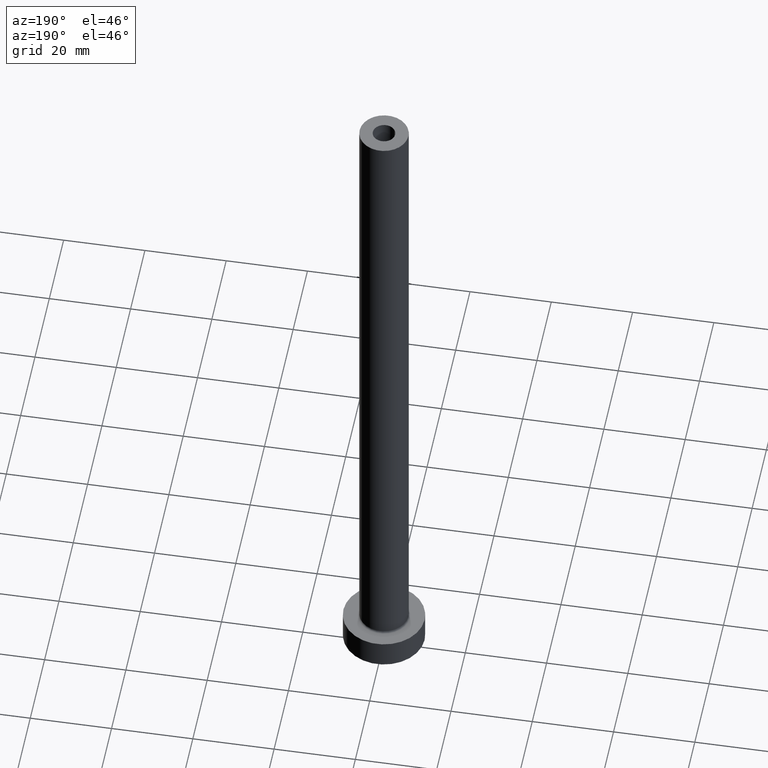
[diagram: clean part render]
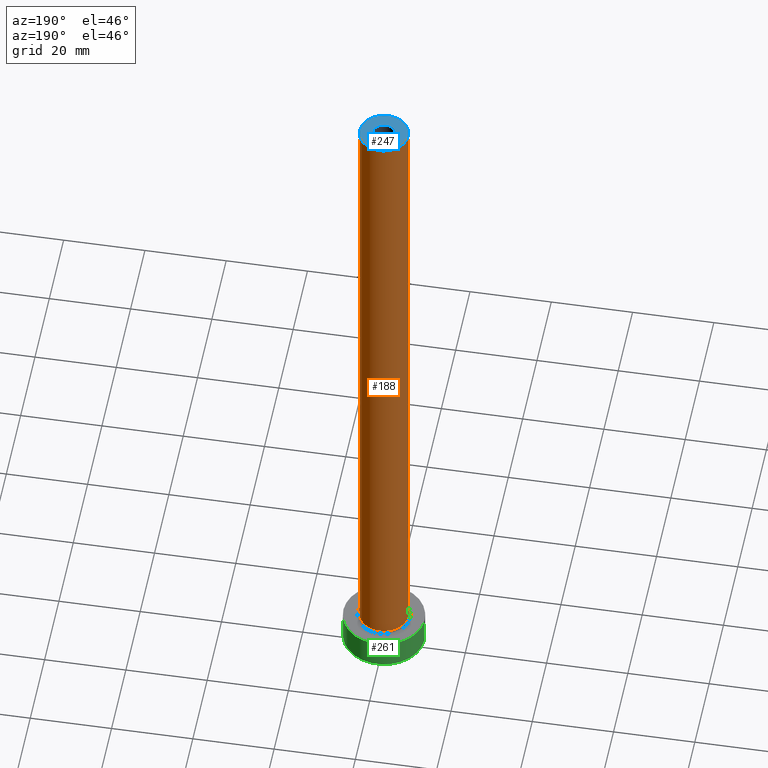
[diagram: same view with three faces highlighted in distinct colors, each labeled with its STEP entity id]
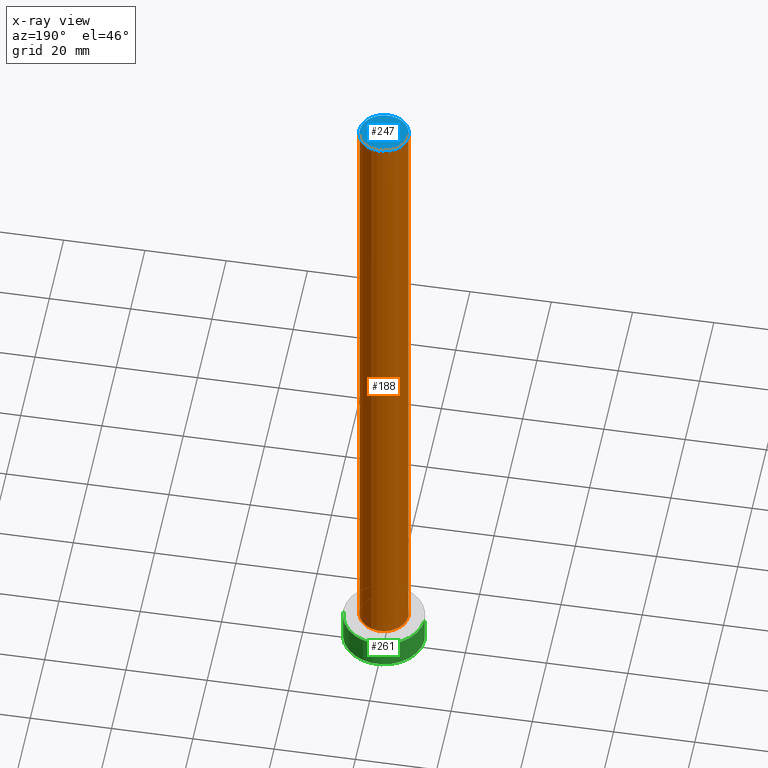
[diagram: x-ray of the same camera — body ghosted, the three highlighted faces saturated]
A machine part, auxiliary view with three faces highlighted in distinct colors.
The next image is the same camera in x-ray (body ghosted, the three faces saturated) — at least one of them is partly hidden behind the body in this view.
Their STEP definitions:

[orange] entity #188 — the highlighted cylindrical surface (edge-blend (fillet) strip) has radius 6 mm, axis along (-0, -0, -1).
#19 = VERTEX_POINT ( 'NONE', #248 ) ;
#28 = EDGE_CURVE ( 'NONE', #144, #19, #344, .T. ) ;
#31 = DIRECTION ( 'NONE',  ( -0.000000000000000000, -0.000000000000000000, -1.000000000000000000 ) ) ;
#63 = CARTESIAN_POINT ( 'NONE',  ( -6.000000000000000888, 0.000000000000000000, 7.500000000000007105 ) ) ;
#67 = DIRECTION ( 'NONE',  ( 1.000000000000000000, 0.000000000000000000, 0.000000000000000000 ) ) ;
#84 = DIRECTION ( 'NONE',  ( 0.000000000000000000, 0.000000000000000000, 1.000000000000000000 ) ) ;
#90 = EDGE_CURVE ( 'NONE', #144, #228, #421, .T. ) ;
#94 = CARTESIAN_POINT ( 'NONE',  ( 0.000000000000000000, 0.000000000000000000, 7.500000000000007105 ) ) ;
#95 = CIRCLE ( 'NONE', #314, 6.000000000000000888 ) ;
#106 = EDGE_CURVE ( 'NONE', #228, #176, #95, .T. ) ;
#112 = CYLINDRICAL_SURFACE ( 'NONE', #382, 6.000000000000000888 ) ;
#118 = VECTOR ( 'NONE', #31, 1000.000000000000000 ) ;
#128 = CARTESIAN_POINT ( 'NONE',  ( 6.000000000000000888, 7.347880794884119736E-16, 175.0000000000000284 ) ) ;
#138 = DIRECTION ( 'NONE',  ( 1.000000000000000000, 0.000000000000000000, 0.000000000000000000 ) ) ;
#144 = VERTEX_POINT ( 'NONE', #128 ) ;
#147 = VECTOR ( 'NONE', #383, 1000.000000000000000 ) ;
#154 = CARTESIAN_POINT ( 'NONE',  ( 6.000000000000000888, 7.347880794884119736E-16, 7.500000000000007105 ) ) ;
#160 = ORIENTED_EDGE ( 'NONE', *, *, #254, .F. ) ;
#162 = ORIENTED_EDGE ( 'NONE', *, *, #90, .T. ) ;
#176 = VERTEX_POINT ( 'NONE', #63 ) ;
#186 = LINE ( 'NONE', #321, #118 ) ;
#188 = ADVANCED_FACE ( 'NONE', ( #311 ), #112, .T. ) ;
#192 = DIRECTION ( 'NONE',  ( -1.000000000000000000, 0.000000000000000000, 0.000000000000000000 ) ) ;
#226 = DIRECTION ( 'NONE',  ( -0.000000000000000000, -0.000000000000000000, -1.000000000000000000 ) ) ;
#228 = VERTEX_POINT ( 'NONE', #154 ) ;
#235 = EDGE_LOOP ( 'NONE', ( #452, #162, #301, #160 ) ) ;
#237 = AXIS2_PLACEMENT_3D ( 'NONE', #290, #387, #67 ) ;
#248 = CARTESIAN_POINT ( 'NONE',  ( -6.000000000000000888, 0.000000000000000000, 175.0000000000000284 ) ) ;
#250 = CARTESIAN_POINT ( 'NONE',  ( 6.000000000000000888, 7.347880794884119736E-16, 175.0000000000000284 ) ) ;
#254 = EDGE_CURVE ( 'NONE', #19, #176, #186, .T. ) ;
#290 = CARTESIAN_POINT ( 'NONE',  ( 0.000000000000000000, 0.000000000000000000, 175.0000000000000284 ) ) ;
#292 = CARTESIAN_POINT ( 'NONE',  ( 0.000000000000000000, 0.000000000000000000, 175.0000000000000284 ) ) ;
#301 = ORIENTED_EDGE ( 'NONE', *, *, #106, .T. ) ;
#311 = FACE_OUTER_BOUND ( 'NONE', #235, .T. ) ;
#314 = AXIS2_PLACEMENT_3D ( 'NONE', #94, #84, #138 ) ;
#321 = CARTESIAN_POINT ( 'NONE',  ( -6.000000000000000888, 0.000000000000000000, 175.0000000000000284 ) ) ;
#344 = CIRCLE ( 'NONE', #237, 6.000000000000000888 ) ;
#382 = AXIS2_PLACEMENT_3D ( 'NONE', #292, #226, #192 ) ;
#383 = DIRECTION ( 'NONE',  ( -0.000000000000000000, -0.000000000000000000, -1.000000000000000000 ) ) ;
#387 = DIRECTION ( 'NONE',  ( 0.000000000000000000, 0.000000000000000000, 1.000000000000000000 ) ) ;
#421 = LINE ( 'NONE', #250, #147 ) ;
#452 = ORIENTED_EDGE ( 'NONE', *, *, #28, .F. ) ;

[blue] entity #247 — the highlighted planar face has unit normal (0, 0, 1).
#4 = CARTESIAN_POINT ( 'NONE',  ( 0.000000000000000000, 0.000000000000000000, 175.0000000000000284 ) ) ;
#5 = FACE_OUTER_BOUND ( 'NONE', #341, .T. ) ;
#9 = ORIENTED_EDGE ( 'NONE', *, *, #28, .T. ) ;
#19 = VERTEX_POINT ( 'NONE', #248 ) ;
#28 = EDGE_CURVE ( 'NONE', #144, #19, #344, .T. ) ;
#56 = CARTESIAN_POINT ( 'NONE',  ( 0.000000000000000000, 0.000000000000000000, 175.0000000000000284 ) ) ;
#67 = DIRECTION ( 'NONE',  ( 1.000000000000000000, 0.000000000000000000, 0.000000000000000000 ) ) ;
#89 = EDGE_LOOP ( 'NONE', ( #210, #197 ) ) ;
#103 = EDGE_CURVE ( 'NONE', #438, #233, #184, .T. ) ;
#111 = PLANE ( 'NONE',  #229 ) ;
#117 = AXIS2_PLACEMENT_3D ( 'NONE', #240, #303, #363 ) ;
#128 = CARTESIAN_POINT ( 'NONE',  ( 6.000000000000000888, 7.347880794884119736E-16, 175.0000000000000284 ) ) ;
#139 = DIRECTION ( 'NONE',  ( 1.000000000000000000, 0.000000000000000000, 0.000000000000000000 ) ) ;
#144 = VERTEX_POINT ( 'NONE', #128 ) ;
#152 = EDGE_CURVE ( 'NONE', #19, #144, #195, .T. ) ;
#175 = CARTESIAN_POINT ( 'NONE',  ( 0.000000000000000000, 0.000000000000000000, 175.0000000000000284 ) ) ;
#184 = CIRCLE ( 'NONE', #117, 2.750000000000000000 ) ;
#195 = CIRCLE ( 'NONE', #243, 6.000000000000000888 ) ;
#197 = ORIENTED_EDGE ( 'NONE', *, *, #103, .F. ) ;
#202 = DIRECTION ( 'NONE',  ( 0.000000000000000000, 0.000000000000000000, 1.000000000000000000 ) ) ;
#210 = ORIENTED_EDGE ( 'NONE', *, *, #436, .F. ) ;
#217 = FACE_BOUND ( 'NONE', #89, .T. ) ;
#219 = DIRECTION ( 'NONE',  ( 1.000000000000000000, 0.000000000000000000, -0.000000000000000000 ) ) ;
#229 = AXIS2_PLACEMENT_3D ( 'NONE', #4, #391, #219 ) ;
#233 = VERTEX_POINT ( 'NONE', #424 ) ;
#237 = AXIS2_PLACEMENT_3D ( 'NONE', #290, #387, #67 ) ;
#240 = CARTESIAN_POINT ( 'NONE',  ( 0.000000000000000000, 0.000000000000000000, 175.0000000000000284 ) ) ;
#243 = AXIS2_PLACEMENT_3D ( 'NONE', #56, #202, #443 ) ;
#245 = ORIENTED_EDGE ( 'NONE', *, *, #152, .T. ) ;
#247 = ADVANCED_FACE ( 'NONE', ( #217, #5 ), #111, .T. ) ;
#248 = CARTESIAN_POINT ( 'NONE',  ( -6.000000000000000888, 0.000000000000000000, 175.0000000000000284 ) ) ;
#269 = AXIS2_PLACEMENT_3D ( 'NONE', #175, #307, #139 ) ;
#278 = CARTESIAN_POINT ( 'NONE',  ( 2.750000000000000000, 3.367778697655221012E-16, 175.0000000000000284 ) ) ;
#290 = CARTESIAN_POINT ( 'NONE',  ( 0.000000000000000000, 0.000000000000000000, 175.0000000000000284 ) ) ;
#303 = DIRECTION ( 'NONE',  ( 0.000000000000000000, 0.000000000000000000, 1.000000000000000000 ) ) ;
#307 = DIRECTION ( 'NONE',  ( 0.000000000000000000, 0.000000000000000000, 1.000000000000000000 ) ) ;
#341 = EDGE_LOOP ( 'NONE', ( #245, #9 ) ) ;
#344 = CIRCLE ( 'NONE', #237, 6.000000000000000888 ) ;
#363 = DIRECTION ( 'NONE',  ( 1.000000000000000000, 0.000000000000000000, 0.000000000000000000 ) ) ;
#373 = CIRCLE ( 'NONE', #269, 2.750000000000000000 ) ;
#387 = DIRECTION ( 'NONE',  ( 0.000000000000000000, 0.000000000000000000, 1.000000000000000000 ) ) ;
#391 = DIRECTION ( 'NONE',  ( 0.000000000000000000, 0.000000000000000000, 1.000000000000000000 ) ) ;
#424 = CARTESIAN_POINT ( 'NONE',  ( -2.750000000000000000, 0.000000000000000000, 175.0000000000000284 ) ) ;
#436 = EDGE_CURVE ( 'NONE', #233, #438, #373, .T. ) ;
#438 = VERTEX_POINT ( 'NONE', #278 ) ;
#443 = DIRECTION ( 'NONE',  ( 1.000000000000000000, 0.000000000000000000, 0.000000000000000000 ) ) ;

[green] entity #261 — the highlighted cylindrical surface (partial cylindrical patch) has radius 10 mm, axis along (-0, -0, -1).
#1 = DIRECTION ( 'NONE',  ( 0.000000000000000000, 0.000000000000000000, 1.000000000000000000 ) ) ;
#17 = CARTESIAN_POINT ( 'NONE',  ( 10.00000000000000000, 1.224646799147353256E-15, 7.000000000000000000 ) ) ;
#22 = AXIS2_PLACEMENT_3D ( 'NONE', #318, #422, #83 ) ;
#83 = DIRECTION ( 'NONE',  ( -1.000000000000000000, 0.000000000000000000, 0.000000000000000000 ) ) ;
#98 = CARTESIAN_POINT ( 'NONE',  ( 10.00000000000000000, 1.224646799147353256E-15, 7.000000000000000000 ) ) ;
#101 = LINE ( 'NONE', #98, #447 ) ;
#121 = CARTESIAN_POINT ( 'NONE',  ( -10.00000000000000000, 0.000000000000000000, 7.000000000000000000 ) ) ;
#140 = VERTEX_POINT ( 'NONE', #17 ) ;
#141 = EDGE_CURVE ( 'NONE', #194, #336, #439, .T. ) ;
#161 = CARTESIAN_POINT ( 'NONE',  ( -10.00000000000000000, 0.000000000000000000, 7.000000000000000000 ) ) ;
#168 = DIRECTION ( 'NONE',  ( 1.000000000000000000, 0.000000000000000000, 0.000000000000000000 ) ) ;
#170 = EDGE_LOOP ( 'NONE', ( #274, #241, #223, #442 ) ) ;
#171 = VECTOR ( 'NONE', #386, 1000.000000000000000 ) ;
#183 = DIRECTION ( 'NONE',  ( 1.000000000000000000, 0.000000000000000000, 0.000000000000000000 ) ) ;
#194 = VERTEX_POINT ( 'NONE', #287 ) ;
#196 = CIRCLE ( 'NONE', #209, 10.00000000000000000 ) ;
#209 = AXIS2_PLACEMENT_3D ( 'NONE', #253, #1, #183 ) ;
#223 = ORIENTED_EDGE ( 'NONE', *, *, #141, .T. ) ;
#241 = ORIENTED_EDGE ( 'NONE', *, *, #426, .T. ) ;
#246 = EDGE_CURVE ( 'NONE', #372, #336, #351, .T. ) ;
#253 = CARTESIAN_POINT ( 'NONE',  ( 0.000000000000000000, 0.000000000000000000, 7.000000000000000000 ) ) ;
#261 = ADVANCED_FACE ( 'NONE', ( #395 ), #357, .T. ) ;
#274 = ORIENTED_EDGE ( 'NONE', *, *, #331, .F. ) ;
#287 = CARTESIAN_POINT ( 'NONE',  ( 10.00000000000000000, 1.224646799147353256E-15, 0.000000000000000000 ) ) ;
#289 = CARTESIAN_POINT ( 'NONE',  ( -10.00000000000000000, 0.000000000000000000, 0.000000000000000000 ) ) ;
#315 = AXIS2_PLACEMENT_3D ( 'NONE', #440, #405, #168 ) ;
#318 = CARTESIAN_POINT ( 'NONE',  ( 0.000000000000000000, 0.000000000000000000, 7.000000000000000000 ) ) ;
#331 = EDGE_CURVE ( 'NONE', #140, #372, #196, .T. ) ;
#336 = VERTEX_POINT ( 'NONE', #289 ) ;
#351 = LINE ( 'NONE', #121, #171 ) ;
#357 = CYLINDRICAL_SURFACE ( 'NONE', #22, 10.00000000000000000 ) ;
#372 = VERTEX_POINT ( 'NONE', #161 ) ;
#386 = DIRECTION ( 'NONE',  ( -0.000000000000000000, -0.000000000000000000, -1.000000000000000000 ) ) ;
#395 = FACE_OUTER_BOUND ( 'NONE', #170, .T. ) ;
#405 = DIRECTION ( 'NONE',  ( 0.000000000000000000, 0.000000000000000000, 1.000000000000000000 ) ) ;
#418 = DIRECTION ( 'NONE',  ( -0.000000000000000000, -0.000000000000000000, -1.000000000000000000 ) ) ;
#422 = DIRECTION ( 'NONE',  ( -0.000000000000000000, -0.000000000000000000, -1.000000000000000000 ) ) ;
#426 = EDGE_CURVE ( 'NONE', #140, #194, #101, .T. ) ;
#439 = CIRCLE ( 'NONE', #315, 10.00000000000000000 ) ;
#440 = CARTESIAN_POINT ( 'NONE',  ( 0.000000000000000000, 0.000000000000000000, 0.000000000000000000 ) ) ;
#442 = ORIENTED_EDGE ( 'NONE', *, *, #246, .F. ) ;
#447 = VECTOR ( 'NONE', #418, 1000.000000000000000 ) ;